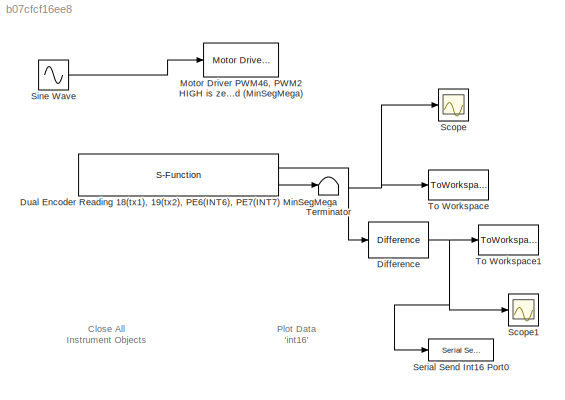
MODEL slx_b07cfcf16ee8
KIND model
CONFIG AbsTol = auto
CONFIG FixedStep = auto
CONFIG MaxStep = auto
CONFIG MinStep = auto
CONFIG RelTol = 1e-3
CONFIG SampleTimeConstraint = Unconstrained
CONFIG Solver = ode45
CONFIG SolverMode = Auto
CONFIG SolverName = ode45
CONFIG StartTime = 0.0
CONFIG StopTime = 10.0
BLOCK [Reference] Difference  REF=simulink/Discrete/Difference
  DoSatur = off
  ICPrevInput = 0.0
  InputProcessing = Inherited
  LockScale = off
  OutDataType = fixdt(1, 16)
  OutDataTypeStr = Inherit: Inherit via internal rule
  OutMax = []
  OutMin = []
  OutScaling = 2^-10
  OutputDataTypeScalingMode = Inherit via internal rule
  Ports = [1, 1]
  RndMeth = Floor
  SourceBlock = simulink/Discrete/Difference
  SourceType = Difference
BLOCK [S-Function] Dual Encoder Reading 18(tx1), 19(tx2), PE6(INT6), PE7(INT7) MinSegMega 
  CopyFcn = set_param(gcbh,'LinkStatus','none')
  FunctionName = sf_QuadEncoder_18_19_INT6_INT7
  InitFcn = try, set_param(gcb,'FunctionName','sf_QuadEncoder_18_19_INT6_INT7'), end
  OpenFcn = sfunctionwizard(gcbh)
  Parameters = uint8([0 1]),uint8([18 6]),uint8([19 7])
  Ports = [0, 2]
  PreSaveFcn = try, set_param(gcb,'FunctionName','sf_QuadEncoder_18_19_INT6_INT7'), end
  SFunctionModules = sf_QuadEncoder_18_19_INT6_INT7_wrapper
BLOCK [Reference] Motor Driver PWM46, PWM2 HIGH is zero speed (MinSegMega)  REF=MinSegLibrary_MinSegMega/Motor Driver
PWM46, PWM2
HIGH is zero speed
(MinSegMega)
  Ports = [1]
  SourceBlock = MinSegLibrary_MinSegMega/Motor Driver\nPWM46, PWM2\nHIGH is zero speed\n(MinSegMega)
  SourceType = SubSystem
BLOCK [Scope] Scope
  Floating = off
  NumInputPorts = 1
  Ports = [1]
BLOCK [Scope] Scope1
  Floating = off
  NumInputPorts = 1
  Ports = [1]
  SaveName = ScopeData1
BLOCK [Reference] Serial Send Int16 Port0  REF=RASPlib/Serial Send Int16 Port0
  Ports = [1]
  SourceBlock = RASPlib/Serial Send Int16 Port0
  SourceType = SubSystem
BLOCK [Sin] Sine Wave
  Amplitude = 4.5
  Ports = [0, 1]
  SampleTime = 3
BLOCK [Terminator] Terminator
BLOCK [ToWorkspace] To Workspace
  FixptAsFi = on
  MaxDataPoints = inf
  Ports = [1]
  SampleTime = -1
  Save2DSignal = 3-D array (concatenate along third dimension)
  VariableName = pos
BLOCK [ToWorkspace] To Workspace1
  FixptAsFi = on
  MaxDataPoints = inf
  Ports = [1]
  SampleTime = -1
  Save2DSignal = 3-D array (concatenate along third dimension)
  VariableName = vel
ANNOTATION (root): Close All Instrument Objects
ANNOTATION (root): Plot Data 'int16'
NET Difference:1 -> Scope1:1, Serial Send Int16 Port0:1, To Workspace1:1
NET Dual Encoder Reading 18(tx1), 19(tx2), PE6(INT6), PE7(INT7) MinSegMega :1 -> Difference:1, Scope:1, To Workspace:1
LINE Dual Encoder Reading 18(tx1), 19(tx2), PE6(INT6), PE7(INT7) MinSegMega :2 -> Terminator:1
LINE Sine Wave:1 -> Motor Driver PWM46, PWM2 HIGH is zero speed (MinSegMega):1
note: NET lines group one-source signal fan-out (src -> all destinations, sorted); 1:1 wires keep LINE
